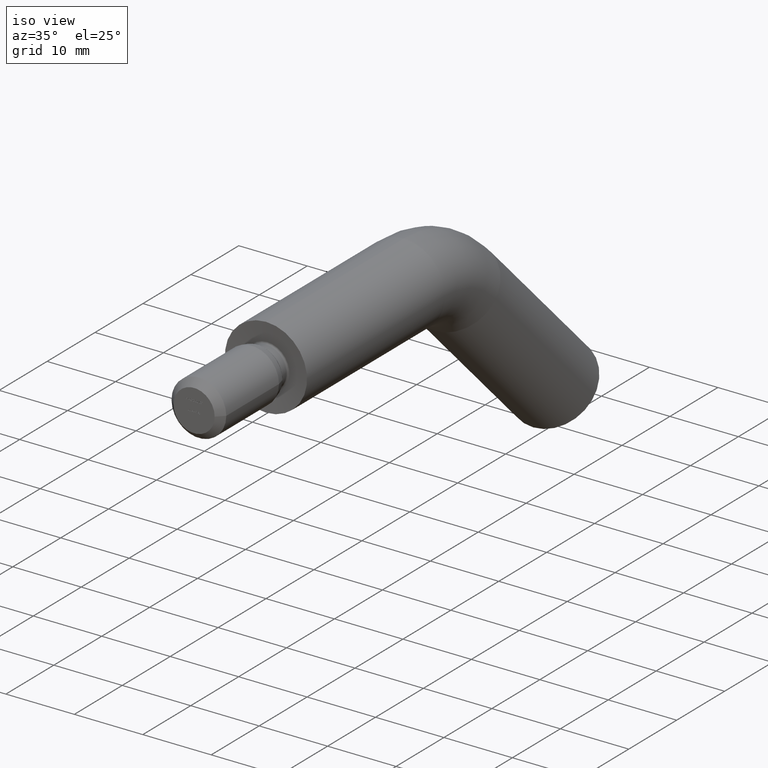
[diagram: clean part render]
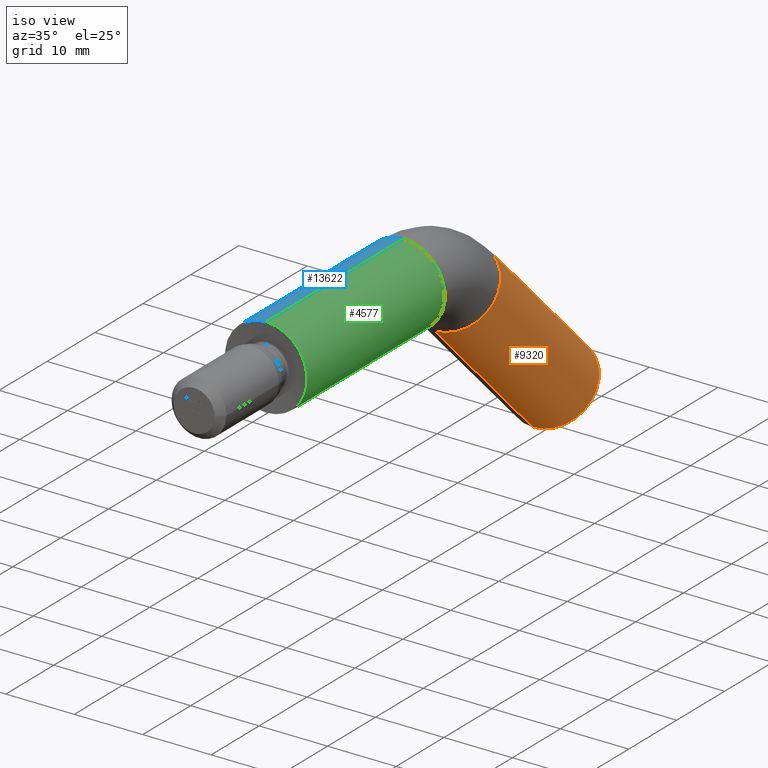
[diagram: same view with three faces highlighted in distinct colors, each labeled with its STEP entity id]
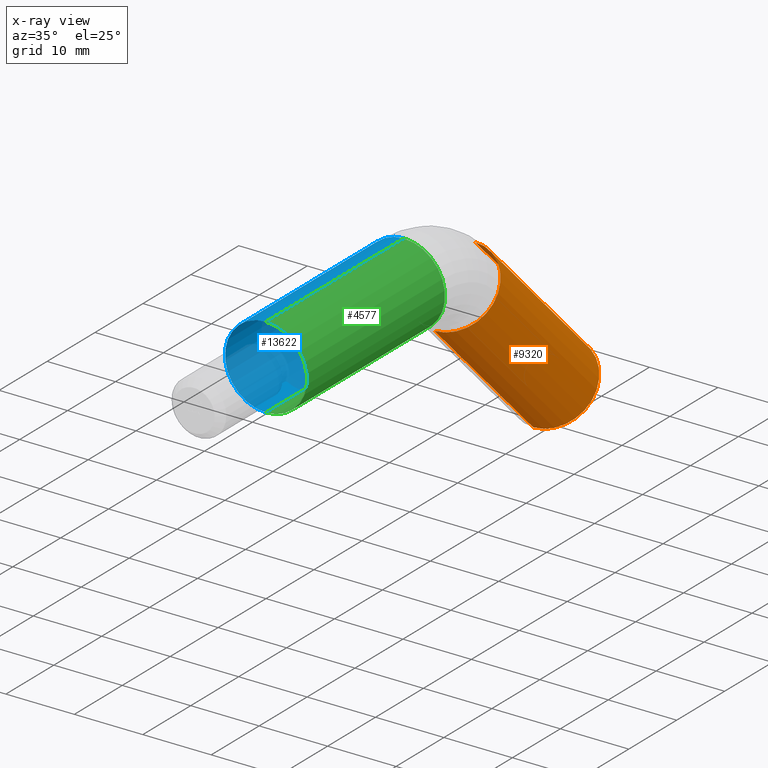
[diagram: x-ray of the same camera — body ghosted, the three highlighted faces saturated]
A machine part, iso view with three faces highlighted in distinct colors.
The next image is the same camera in x-ray (body ghosted, the three faces saturated) — at least one of them is partly hidden behind the body in this view.
Their STEP definitions:

[orange] entity #9320 — the highlighted cylindrical surface (partial cylindrical patch) has radius 6 mm, axis along (0, 0.7071, -0.7071).
#376 = CARTESIAN_POINT ( 'NONE',  ( 0.0000000000000000000, 39.39339828220188600, -4.393398282201803600 ) ) ;
#849 = ORIENTED_EDGE ( 'NONE', *, *, #6235, .T. ) ;
#900 = DIRECTION ( 'NONE',  ( 0.0000000000000000000, 0.7071067811865492400, 0.7071067811865456900 ) ) ;
#1357 = CYLINDRICAL_SURFACE ( 'NONE', #4754, 5.999999999999999100 ) ;
#1498 = DIRECTION ( 'NONE',  ( 0.0000000000000000000, 0.7071067811865462400, -0.7071067811865489100 ) ) ;
#1784 = CARTESIAN_POINT ( 'NONE',  ( 0.0000000000000000000, 43.63603896932117700, -0.1507575950825262900 ) ) ;
#1882 = ORIENTED_EDGE ( 'NONE', *, *, #4436, .F. ) ;
#2405 = FACE_OUTER_BOUND ( 'NONE', #11857, .T. ) ;
#3230 = DIRECTION ( 'NONE',  ( 0.0000000000000000000, 0.7071067811865462400, -0.7071067811865489100 ) ) ;
#4033 = VERTEX_POINT ( 'NONE', #1784 ) ;
#4152 = DIRECTION ( 'NONE',  ( 0.0000000000000000000, 0.7071067811865463500, -0.7071067811865487900 ) ) ;
#4355 = CARTESIAN_POINT ( 'NONE',  ( 7.347880794884120700E-016, 35.15075759508259500, -8.636038969321081300 ) ) ;
#4436 = EDGE_CURVE ( 'NONE', #4033, #10829, #12127, .T. ) ;
#4649 = CARTESIAN_POINT ( 'NONE',  ( 7.347880794884120700E-016, 55.75735931288070900, -29.24264068711927300 ) ) ;
#4754 = AXIS2_PLACEMENT_3D ( 'NONE', #376, #13700, #12651 ) ;
#5462 = ORIENTED_EDGE ( 'NONE', *, *, #5589, .T. ) ;
#5589 = EDGE_CURVE ( 'NONE', #4033, #13043, #7451, .T. ) ;
#5693 = CIRCLE ( 'NONE', #7166, 6.000000000000003600 ) ;
#6235 = EDGE_CURVE ( 'NONE', #13043, #12743, #13304, .T. ) ;
#7166 = AXIS2_PLACEMENT_3D ( 'NONE', #7329, #10621, #900 ) ;
#7329 = CARTESIAN_POINT ( 'NONE',  ( 0.0000000000000000000, 60.00000000000000000, -24.99999999999999300 ) ) ;
#7451 = CIRCLE ( 'NONE', #12130, 5.999999999999999100 ) ;
#8243 = EDGE_CURVE ( 'NONE', #10829, #12743, #5693, .T. ) ;
#8423 = CARTESIAN_POINT ( 'NONE',  ( 0.0000000000000000000, 39.39339828220188600, -4.393398282201803600 ) ) ;
#9320 = ADVANCED_FACE ( 'NONE', ( #2405 ), #1357, .T. ) ;
#9532 = DIRECTION ( 'NONE',  ( 0.0000000000000000000, 0.7071067811865485700, 0.7071067811865465700 ) ) ;
#9962 = CARTESIAN_POINT ( 'NONE',  ( 7.347880794884120700E-016, 35.15075759508259500, -8.636038969321081300 ) ) ;
#10372 = VECTOR ( 'NONE', #3230, 999.9999999999998900 ) ;
#10621 = DIRECTION ( 'NONE',  ( 0.0000000000000000000, 0.7071067811865463500, -0.7071067811865487900 ) ) ;
#10829 = VERTEX_POINT ( 'NONE', #11050 ) ;
#11050 = CARTESIAN_POINT ( 'NONE',  ( 0.0000000000000000000, 64.24264068711929100, -20.75735931288072000 ) ) ;
#11857 = EDGE_LOOP ( 'NONE', ( #5462, #849, #13387, #1882 ) ) ;
#12127 = LINE ( 'NONE', #13475, #14179 ) ;
#12130 = AXIS2_PLACEMENT_3D ( 'NONE', #8423, #4152, #9532 ) ;
#12651 = DIRECTION ( 'NONE',  ( 0.0000000000000000000, 0.7071067811865485700, 0.7071067811865463500 ) ) ;
#12743 = VERTEX_POINT ( 'NONE', #4649 ) ;
#13043 = VERTEX_POINT ( 'NONE', #9962 ) ;
#13304 = LINE ( 'NONE', #4355, #10372 ) ;
#13387 = ORIENTED_EDGE ( 'NONE', *, *, #8243, .F. ) ;
#13475 = CARTESIAN_POINT ( 'NONE',  ( 0.0000000000000000000, 43.63603896932117700, -0.1507575950825254300 ) ) ;
#13700 = DIRECTION ( 'NONE',  ( 0.0000000000000000000, 0.7071067811865462400, -0.7071067811865487900 ) ) ;
#14179 = VECTOR ( 'NONE', #1498, 999.9999999999998900 ) ;

[blue] entity #13622 — the highlighted cylindrical surface (partial cylindrical patch) has radius 6 mm, axis along (-0, -1, -0).
#113 = EDGE_CURVE ( 'NONE', #7156, #1983, #8421, .T. ) ;
#157 = EDGE_CURVE ( 'NONE', #4165, #1983, #11829, .T. ) ;
#277 = DIRECTION ( 'NONE',  ( -0.0000000000000000000, -1.000000000000000000, -0.0000000000000000000 ) ) ;
#388 = EDGE_CURVE ( 'NONE', #7156, #6282, #13741, .T. ) ;
#990 = DIRECTION ( 'NONE',  ( -0.0000000000000000000, -1.000000000000000000, -0.0000000000000000000 ) ) ;
#1819 = ORIENTED_EDGE ( 'NONE', *, *, #12327, .F. ) ;
#1983 = VERTEX_POINT ( 'NONE', #2439 ) ;
#2439 = CARTESIAN_POINT ( 'NONE',  ( 0.0000000000000000000, 0.0000000000000000000, -6.000000000000000000 ) ) ;
#2456 = CARTESIAN_POINT ( 'NONE',  ( 7.347880794884120700E-016, 28.78679656440364800, 6.000000000000000900 ) ) ;
#2684 = ORIENTED_EDGE ( 'NONE', *, *, #157, .F. ) ;
#3090 = DIRECTION ( 'NONE',  ( 0.0000000000000000000, 0.0000000000000000000, 1.000000000000000000 ) ) ;
#3260 = CARTESIAN_POINT ( 'NONE',  ( 0.0000000000000000000, 28.78679656440364800, -6.000000000000000900 ) ) ;
#3461 = CYLINDRICAL_SURFACE ( 'NONE', #4213, 6.000000000000000900 ) ;
#4165 = VERTEX_POINT ( 'NONE', #8877 ) ;
#4213 = AXIS2_PLACEMENT_3D ( 'NONE', #4279, #277, #6944 ) ;
#4279 = CARTESIAN_POINT ( 'NONE',  ( 0.0000000000000000000, 28.78679656440364800, 0.0000000000000000000 ) ) ;
#5181 = AXIS2_PLACEMENT_3D ( 'NONE', #13359, #14293, #12046 ) ;
#6282 = VERTEX_POINT ( 'NONE', #9289 ) ;
#6494 = VECTOR ( 'NONE', #990, 1000.000000000000000 ) ;
#6944 = DIRECTION ( 'NONE',  ( 0.0000000000000000000, 0.0000000000000000000, -1.000000000000000000 ) ) ;
#7156 = VERTEX_POINT ( 'NONE', #3260 ) ;
#7926 = EDGE_LOOP ( 'NONE', ( #1819, #10802, #12786, #2684 ) ) ;
#8421 = LINE ( 'NONE', #9658, #6494 ) ;
#8877 = CARTESIAN_POINT ( 'NONE',  ( 7.347880794884120700E-016, 0.0000000000000000000, 6.000000000000000000 ) ) ;
#9123 = DIRECTION ( 'NONE',  ( -0.0000000000000000000, -1.000000000000000000, -0.0000000000000000000 ) ) ;
#9289 = CARTESIAN_POINT ( 'NONE',  ( 7.347880794884120700E-016, 28.78679656440364800, 6.000000000000000900 ) ) ;
#9658 = CARTESIAN_POINT ( 'NONE',  ( 0.0000000000000000000, 28.78679656440364800, -6.000000000000000900 ) ) ;
#10756 = DIRECTION ( 'NONE',  ( 0.0000000000000000000, 1.000000000000000000, 0.0000000000000000000 ) ) ;
#10802 = ORIENTED_EDGE ( 'NONE', *, *, #388, .F. ) ;
#11183 = AXIS2_PLACEMENT_3D ( 'NONE', #14100, #10756, #3090 ) ;
#11278 = VECTOR ( 'NONE', #9123, 1000.000000000000000 ) ;
#11584 = FACE_OUTER_BOUND ( 'NONE', #7926, .T. ) ;
#11829 = CIRCLE ( 'NONE', #5181, 6.000000000000000000 ) ;
#12046 = DIRECTION ( 'NONE',  ( 0.0000000000000000000, 0.0000000000000000000, -1.000000000000000000 ) ) ;
#12327 = EDGE_CURVE ( 'NONE', #6282, #4165, #13506, .T. ) ;
#12786 = ORIENTED_EDGE ( 'NONE', *, *, #113, .T. ) ;
#13359 = CARTESIAN_POINT ( 'NONE',  ( 0.0000000000000000000, 0.0000000000000000000, 0.0000000000000000000 ) ) ;
#13506 = LINE ( 'NONE', #2456, #11278 ) ;
#13622 = ADVANCED_FACE ( 'NONE', ( #11584 ), #3461, .T. ) ;
#13741 = CIRCLE ( 'NONE', #11183, 6.000000000000000900 ) ;
#14100 = CARTESIAN_POINT ( 'NONE',  ( 0.0000000000000000000, 28.78679656440364800, 0.0000000000000000000 ) ) ;
#14293 = DIRECTION ( 'NONE',  ( -0.0000000000000000000, -1.000000000000000000, -0.0000000000000000000 ) ) ;

[green] entity #4577 — the highlighted cylindrical surface (partial cylindrical patch) has radius 6 mm, axis along (-0, -1, -0).
#113 = EDGE_CURVE ( 'NONE', #7156, #1983, #8421, .T. ) ;
#475 = DIRECTION ( 'NONE',  ( -0.0000000000000000000, -1.000000000000000000, -0.0000000000000000000 ) ) ;
#786 = DIRECTION ( 'NONE',  ( 0.0000000000000000000, 1.000000000000000000, 0.0000000000000000000 ) ) ;
#990 = DIRECTION ( 'NONE',  ( -0.0000000000000000000, -1.000000000000000000, -0.0000000000000000000 ) ) ;
#1750 = ORIENTED_EDGE ( 'NONE', *, *, #4076, .F. ) ;
#1983 = VERTEX_POINT ( 'NONE', #2439 ) ;
#2347 = EDGE_LOOP ( 'NONE', ( #1750, #10309, #8964, #11512 ) ) ;
#2439 = CARTESIAN_POINT ( 'NONE',  ( 0.0000000000000000000, 0.0000000000000000000, -6.000000000000000000 ) ) ;
#2456 = CARTESIAN_POINT ( 'NONE',  ( 7.347880794884120700E-016, 28.78679656440364800, 6.000000000000000900 ) ) ;
#3240 = CIRCLE ( 'NONE', #3254, 6.000000000000000000 ) ;
#3254 = AXIS2_PLACEMENT_3D ( 'NONE', #7288, #475, #3860 ) ;
#3260 = CARTESIAN_POINT ( 'NONE',  ( 0.0000000000000000000, 28.78679656440364800, -6.000000000000000900 ) ) ;
#3860 = DIRECTION ( 'NONE',  ( 0.0000000000000000000, 0.0000000000000000000, -1.000000000000000000 ) ) ;
#4076 = EDGE_CURVE ( 'NONE', #6282, #7156, #13864, .T. ) ;
#4165 = VERTEX_POINT ( 'NONE', #8877 ) ;
#4577 = ADVANCED_FACE ( 'NONE', ( #5909 ), #10914, .T. ) ;
#5134 = DIRECTION ( 'NONE',  ( -0.0000000000000000000, -1.000000000000000000, -0.0000000000000000000 ) ) ;
#5268 = CARTESIAN_POINT ( 'NONE',  ( 0.0000000000000000000, 28.78679656440364800, 0.0000000000000000000 ) ) ;
#5909 = FACE_OUTER_BOUND ( 'NONE', #2347, .T. ) ;
#6028 = AXIS2_PLACEMENT_3D ( 'NONE', #13914, #786, #9641 ) ;
#6282 = VERTEX_POINT ( 'NONE', #9289 ) ;
#6494 = VECTOR ( 'NONE', #990, 1000.000000000000000 ) ;
#7156 = VERTEX_POINT ( 'NONE', #3260 ) ;
#7288 = CARTESIAN_POINT ( 'NONE',  ( 0.0000000000000000000, 0.0000000000000000000, 0.0000000000000000000 ) ) ;
#8149 = EDGE_CURVE ( 'NONE', #1983, #4165, #3240, .T. ) ;
#8421 = LINE ( 'NONE', #9658, #6494 ) ;
#8877 = CARTESIAN_POINT ( 'NONE',  ( 7.347880794884120700E-016, 0.0000000000000000000, 6.000000000000000000 ) ) ;
#8964 = ORIENTED_EDGE ( 'NONE', *, *, #8149, .F. ) ;
#9123 = DIRECTION ( 'NONE',  ( -0.0000000000000000000, -1.000000000000000000, -0.0000000000000000000 ) ) ;
#9289 = CARTESIAN_POINT ( 'NONE',  ( 7.347880794884120700E-016, 28.78679656440364800, 6.000000000000000900 ) ) ;
#9641 = DIRECTION ( 'NONE',  ( 0.0000000000000000000, 0.0000000000000000000, 1.000000000000000000 ) ) ;
#9658 = CARTESIAN_POINT ( 'NONE',  ( 0.0000000000000000000, 28.78679656440364800, -6.000000000000000900 ) ) ;
#10309 = ORIENTED_EDGE ( 'NONE', *, *, #12327, .T. ) ;
#10914 = CYLINDRICAL_SURFACE ( 'NONE', #13798, 6.000000000000000900 ) ;
#11278 = VECTOR ( 'NONE', #9123, 1000.000000000000000 ) ;
#11512 = ORIENTED_EDGE ( 'NONE', *, *, #113, .F. ) ;
#12327 = EDGE_CURVE ( 'NONE', #6282, #4165, #13506, .T. ) ;
#12903 = DIRECTION ( 'NONE',  ( 0.0000000000000000000, 0.0000000000000000000, -1.000000000000000000 ) ) ;
#13506 = LINE ( 'NONE', #2456, #11278 ) ;
#13798 = AXIS2_PLACEMENT_3D ( 'NONE', #5268, #5134, #12903 ) ;
#13864 = CIRCLE ( 'NONE', #6028, 6.000000000000000900 ) ;
#13914 = CARTESIAN_POINT ( 'NONE',  ( 0.0000000000000000000, 28.78679656440364800, 0.0000000000000000000 ) ) ;